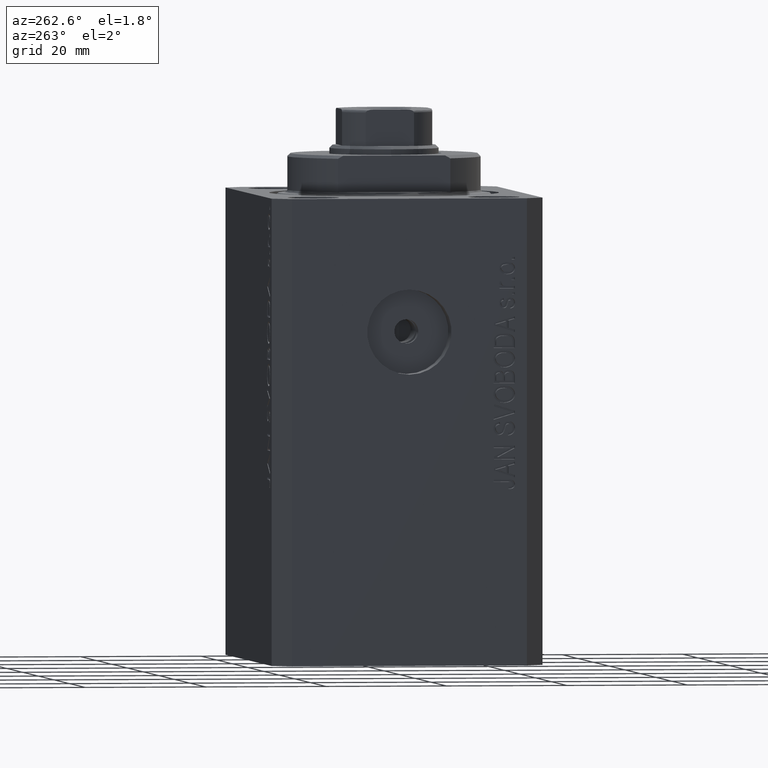
[diagram: clean part render]
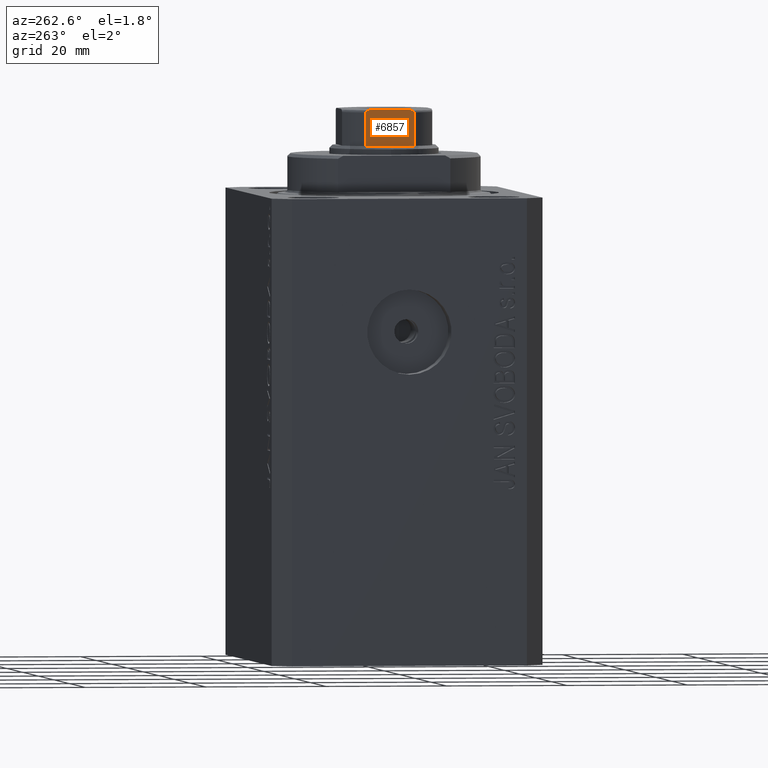
[diagram: same view with one face highlighted and labeled with its STEP entity id]
A machine part, auxiliary view. The second image highlights one B-rep face of the part: STEP entity #6857.
In plain terms, the highlighted planar face has unit normal (1, 0, 0).
Its self-contained STEP definition (entity closure, byte-faithful):
#45 = EDGE_LOOP ( 'NONE', ( #30138, #2680, #20764, #4257, #19852, #32487 ) ) ;
#470 = CARTESIAN_POINT ( 'NONE',  ( -7.499999999999998224, 3.020030562295411336, 83.99999999999995737 ) ) ;
#1556 = VERTEX_POINT ( 'NONE', #17689 ) ;
#1585 = CARTESIAN_POINT ( 'NONE',  ( -7.500000000000001776, 3.999999999999998224, 83.49999999999997158 ) ) ;
#2680 = ORIENTED_EDGE ( 'NONE', *, *, #3401, .T. ) ;
#2745 = CARTESIAN_POINT ( 'NONE',  ( -7.500000000000004441, -3.999999999999997335, 83.56026396800439215 ) ) ;
#3401 = EDGE_CURVE ( 'NONE', #25422, #4782, #7059, .T. ) ;
#3699 = DIRECTION ( 'NONE',  ( -0.000000000000000000, -0.000000000000000000, 1.000000000000000000 ) ) ;
#4087 = CARTESIAN_POINT ( 'NONE',  ( -7.499999999999997335, 3.598393151503796794, 83.89012191927410811 ) ) ;
#4213 = EDGE_CURVE ( 'NONE', #25832, #24633, #22679, .T. ) ;
#4257 = ORIENTED_EDGE ( 'NONE', *, *, #4213, .T. ) ;
#4782 = VERTEX_POINT ( 'NONE', #8425 ) ;
#5606 = VECTOR ( 'NONE', #16135, 1000.000000000000000 ) ;
#5703 = CARTESIAN_POINT ( 'NONE',  ( -7.500000000000000000, -3.708875323752946596, 83.84930352055462777 ) ) ;
#6857 = ADVANCED_FACE ( 'NONE', ( #29504 ), #36277, .F. ) ;
#7059 = B_SPLINE_CURVE_WITH_KNOTS ( 'NONE', 3,
 ( #22653, #2745, #23099, #26492, #36883, #5703, #19930, #40060, #40278, #29661 ),
 .UNSPECIFIED., .F., .F.,
 ( 4, 2, 2, 2, 4 ),
 ( 2.823925224926892107E-17, 0.0001779688448869142295, 0.0003559376897738009745, 0.0007118753795475517504, 0.001423750759095054712 ),
 .UNSPECIFIED. ) ;
#7176 = DIRECTION ( 'NONE',  ( -0.000000000000000000, -0.000000000000000000, 1.000000000000000000 ) ) ;
#7498 = CARTESIAN_POINT ( 'NONE',  ( -7.499999999999998224, 2.783882181415015644, 84.00000000000000000 ) ) ;
#8136 = VERTEX_POINT ( 'NONE', #11411 ) ;
#8425 = CARTESIAN_POINT ( 'NONE',  ( -7.499999999999998224, -2.783882181415016088, 84.00000000000000000 ) ) ;
#8810 = CARTESIAN_POINT ( 'NONE',  ( -7.499999999999997335, 3.857502111569858005, 83.75173359969208775 ) ) ;
#10430 = CARTESIAN_POINT ( 'NONE',  ( -7.499999999999998224, 3.710689790367168506, 83.84812118173427109 ) ) ;
#10544 = VECTOR ( 'NONE', #7176, 1000.000000000000000 ) ;
#10570 = LINE ( 'NONE', #38365, #10544 ) ;
#10851 = VECTOR ( 'NONE', #23178, 1000.000000000000000 ) ;
#11411 = CARTESIAN_POINT ( 'NONE',  ( -7.500000000000002665, -3.999999999999996447, 78.00000000000001421 ) ) ;
#12787 = CARTESIAN_POINT ( 'NONE',  ( -7.500000000000002665, -3.999999999999996447, 83.49999999999997158 ) ) ;
#13826 = CARTESIAN_POINT ( 'NONE',  ( -7.499999999999997335, 3.255843148148218180, 83.98262378726870736 ) ) ;
#16135 = DIRECTION ( 'NONE',  ( 5.782411586589357392E-17, -1.000000000000000000, 0.000000000000000000 ) ) ;
#17689 = CARTESIAN_POINT ( 'NONE',  ( -7.500000000000001776, 3.999999999999995559, 78.00000000000001421 ) ) ;
#18332 = CARTESIAN_POINT ( 'NONE',  ( -7.499999999999999112, 3.975735230428961042, 83.61773041319774791 ) ) ;
#18854 = LINE ( 'NONE', #32622, #5606 ) ;
#19852 = ORIENTED_EDGE ( 'NONE', *, *, #36297, .F. ) ;
#19930 = CARTESIAN_POINT ( 'NONE',  ( -7.499999999999995559, -3.597188386589913023, 83.89052843393240266 ) ) ;
#20453 = CARTESIAN_POINT ( 'NONE',  ( -7.500000000000001776, 3.999999999999998224, 83.49999999999997158 ) ) ;
#20764 = ORIENTED_EDGE ( 'NONE', *, *, #25314, .F. ) ;
#21042 = AXIS2_PLACEMENT_3D ( 'NONE', #36051, #29726, #22498 ) ;
#21047 = CARTESIAN_POINT ( 'NONE',  ( -7.499999999999998224, 2.783882181415015644, 84.00000000000000000 ) ) ;
#22498 = DIRECTION ( 'NONE',  ( -5.782411586589357392E-17, 1.000000000000000000, 0.000000000000000000 ) ) ;
#22653 = CARTESIAN_POINT ( 'NONE',  ( -7.500000000000002665, -3.999999999999996447, 83.49999999999997158 ) ) ;
#22679 = B_SPLINE_CURVE_WITH_KNOTS ( 'NONE', 3,
 ( #21047, #470, #13826, #4087, #10430, #8810, #31880, #18332, #35492, #1585 ),
 .UNSPECIFIED., .F., .F.,
 ( 4, 2, 2, 2, 4 ),
 ( 0.000000000000000000, 0.0007049202178654221480, 0.001057380326798138589, 0.001233610381264485696, 0.001409840435730833020 ),
 .UNSPECIFIED. ) ;
#22743 = CARTESIAN_POINT ( 'NONE',  ( -7.499999999999998224, 7.499999999999999112, 84.00000000000000000 ) ) ;
#23099 = CARTESIAN_POINT ( 'NONE',  ( -7.499999999999999112, -3.976018255615924701, 83.61726199300996143 ) ) ;
#23178 = DIRECTION ( 'NONE',  ( 5.782411586589357392E-17, -1.000000000000000000, 0.000000000000000000 ) ) ;
#24633 = VERTEX_POINT ( 'NONE', #20453 ) ;
#25314 = EDGE_CURVE ( 'NONE', #25832, #4782, #39694, .T. ) ;
#25422 = VERTEX_POINT ( 'NONE', #12787 ) ;
#25832 = VERTEX_POINT ( 'NONE', #7498 ) ;
#26492 = CARTESIAN_POINT ( 'NONE',  ( -7.499999999999997335, -3.904208668232349133, 83.71278134537494964 ) ) ;
#29504 = FACE_OUTER_BOUND ( 'NONE', #45, .T. ) ;
#29661 = CARTESIAN_POINT ( 'NONE',  ( -7.499999999999998224, -2.783882181415016088, 84.00000000000000000 ) ) ;
#29726 = DIRECTION ( 'NONE',  ( 1.000000000000000000, 5.782411586589357392E-17, -0.000000000000000000 ) ) ;
#30138 = ORIENTED_EDGE ( 'NONE', *, *, #38884, .T. ) ;
#30612 = CARTESIAN_POINT ( 'NONE',  ( -7.500000000000002665, -3.999999999999996447, -0.001000000000001000089 ) ) ;
#31541 = VECTOR ( 'NONE', #3699, 1000.000000000000000 ) ;
#31880 = CARTESIAN_POINT ( 'NONE',  ( -7.499999999999998224, 3.904072061442369179, 83.71287056890805900 ) ) ;
#32487 = ORIENTED_EDGE ( 'NONE', *, *, #40898, .T. ) ;
#32622 = CARTESIAN_POINT ( 'NONE',  ( -7.499999999999998224, 7.499999999999999112, 78.00000000000000000 ) ) ;
#34666 = LINE ( 'NONE', #30612, #31541 ) ;
#35492 = CARTESIAN_POINT ( 'NONE',  ( -7.499999999999996447, 4.000000000000207834, 83.56034186205211256 ) ) ;
#36051 = CARTESIAN_POINT ( 'NONE',  ( -7.499999999999998224, 7.499999999999999112, 84.00000000000000000 ) ) ;
#36277 = PLANE ( 'NONE',  #21042 ) ;
#36297 = EDGE_CURVE ( 'NONE', #1556, #24633, #10570, .T. ) ;
#36883 = CARTESIAN_POINT ( 'NONE',  ( -7.499999999999998224, -3.858352854028585632, 83.75117951603152733 ) ) ;
#38365 = CARTESIAN_POINT ( 'NONE',  ( -7.500000000000001776, 3.999999999999998224, -0.001000000000001000089 ) ) ;
#38884 = EDGE_CURVE ( 'NONE', #8136, #25422, #34666, .T. ) ;
#39694 = LINE ( 'NONE', #22743, #10851 ) ;
#40060 = CARTESIAN_POINT ( 'NONE',  ( -7.499999999999996447, -3.254991323038170403, 83.98269028443158390 ) ) ;
#40278 = CARTESIAN_POINT ( 'NONE',  ( -7.499999999999995559, -3.020011215871894361, 83.99999999999995737 ) ) ;
#40898 = EDGE_CURVE ( 'NONE', #1556, #8136, #18854, .T. ) ;